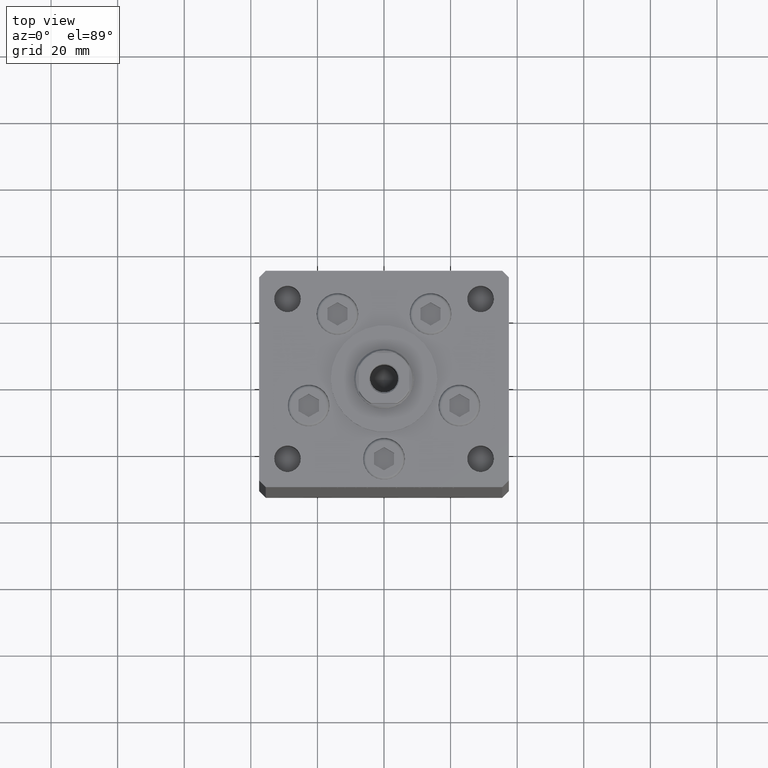
[diagram: clean part render]
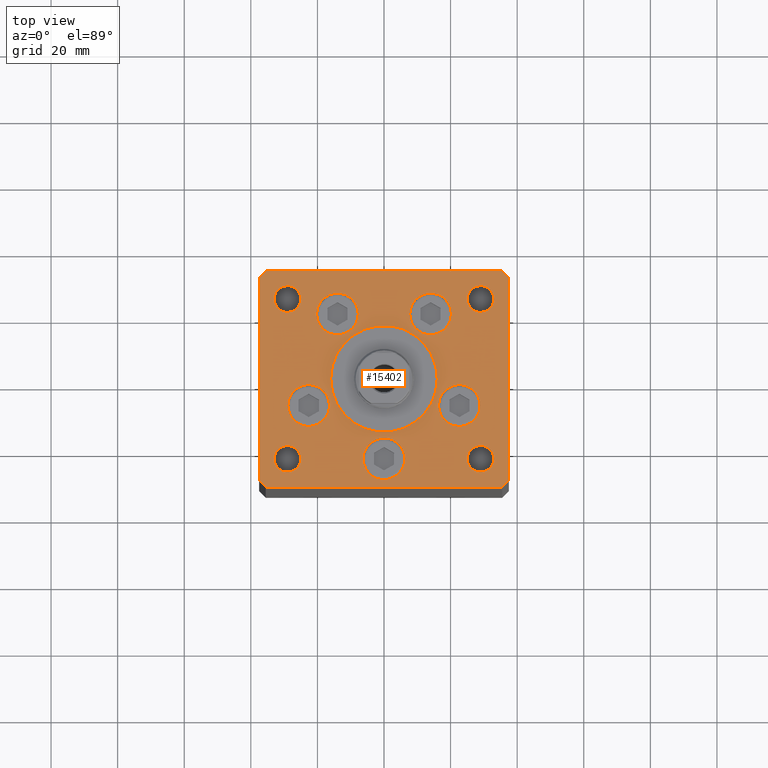
[diagram: same view with one face highlighted and labeled with its STEP entity id]
A machine part, top view. The second image highlights one B-rep face of the part: STEP entity #15402.
In plain terms, the highlighted planar face has unit normal (0, 0, 1).
Its self-contained STEP definition (entity closure, byte-faithful):
#266 = EDGE_CURVE ( 'NONE', #46180, #13747, #46873, .T. ) ;
#684 = DIRECTION ( 'NONE',  ( 0.7071067811865512365, -0.7071067811865439090, 0.000000000000000000 ) ) ;
#1178 = EDGE_LOOP ( 'NONE', ( #38456, #19712 ) ) ;
#1452 = AXIS2_PLACEMENT_3D ( 'NONE', #32591, #50248, #46303 ) ;
#1559 = ORIENTED_EDGE ( 'NONE', *, *, #3892, .T. ) ;
#1649 = EDGE_CURVE ( 'NONE', #3564, #48527, #29189, .T. ) ;
#2240 = CIRCLE ( 'NONE', #24136, 3.999999999999996447 ) ;
#2321 = CIRCLE ( 'NONE', #16646, 4.000000000000000000 ) ;
#2424 = EDGE_LOOP ( 'NONE', ( #32627, #14995 ) ) ;
#2438 = CIRCLE ( 'NONE', #6644, 16.00000000000000355 ) ;
#3105 = AXIS2_PLACEMENT_3D ( 'NONE', #10192, #50563, #37912 ) ;
#3564 = VERTEX_POINT ( 'NONE', #45364 ) ;
#3892 = EDGE_CURVE ( 'NONE', #16084, #27496, #32907, .T. ) ;
#4034 = EDGE_CURVE ( 'NONE', #8093, #24396, #41858, .T. ) ;
#4558 = LINE ( 'NONE', #28296, #16581 ) ;
#4947 = AXIS2_PLACEMENT_3D ( 'NONE', #21114, #37758, #29299 ) ;
#5232 = CARTESIAN_POINT ( 'NONE',  ( 28.87741699796953654, -8.000000000000000000, 0.000000000000000000 ) ) ;
#6028 = EDGE_CURVE ( 'NONE', #19261, #11202, #4558, .T. ) ;
#6080 = ORIENTED_EDGE ( 'NONE', *, *, #10222, .F. ) ;
#6254 = CIRCLE ( 'NONE', #19697, 6.250000000000000000 ) ;
#6269 = DIRECTION ( 'NONE',  ( 1.000000000000000000, 0.000000000000000000, 0.000000000000000000 ) ) ;
#6344 = EDGE_CURVE ( 'NONE', #48527, #3564, #30904, .T. ) ;
#6350 = VERTEX_POINT ( 'NONE', #42192 ) ;
#6488 = CIRCLE ( 'NONE', #1452, 4.000000000000000000 ) ;
#6644 = AXIS2_PLACEMENT_3D ( 'NONE', #26313, #14449, #6269 ) ;
#6688 = DIRECTION ( 'NONE',  ( 2.275047181608926165E-16, -1.000000000000000000, 0.000000000000000000 ) ) ;
#6813 = EDGE_CURVE ( 'NONE', #19186, #13334, #8150, .T. ) ;
#7239 = CARTESIAN_POINT ( 'NONE',  ( -16.37741699796953299, -8.000000000000000000, 0.000000000000000000 ) ) ;
#7797 = DIRECTION ( 'NONE',  ( 1.000000000000000000, 0.000000000000000000, 0.000000000000000000 ) ) ;
#8063 = CARTESIAN_POINT ( 'NONE',  ( -37.50000000000000000, -30.50000000000004263, 0.000000000000000000 ) ) ;
#8093 = VERTEX_POINT ( 'NONE', #36074 ) ;
#8150 = CIRCLE ( 'NONE', #17452, 3.999999999999996447 ) ;
#8175 = AXIS2_PLACEMENT_3D ( 'NONE', #52069, #43635, #44163 ) ;
#8250 = DIRECTION ( 'NONE',  ( 0.000000000000000000, 1.000000000000000000, 0.000000000000000000 ) ) ;
#9446 = FACE_BOUND ( 'NONE', #21359, .T. ) ;
#9621 = EDGE_CURVE ( 'NONE', #13747, #46180, #31876, .T. ) ;
#9701 = ORIENTED_EDGE ( 'NONE', *, *, #22376, .F. ) ;
#10039 = VECTOR ( 'NONE', #26150, 1000.000000000000000 ) ;
#10192 = CARTESIAN_POINT ( 'NONE',  ( 29.00000000000000355, -23.99999999999999645, 0.000000000000000000 ) ) ;
#10222 = EDGE_CURVE ( 'NONE', #27228, #35304, #51242, .T. ) ;
#11132 = DIRECTION ( 'NONE',  ( 1.000000000000000000, 0.000000000000000000, 0.000000000000000000 ) ) ;
#11150 = CARTESIAN_POINT ( 'NONE',  ( 29.00000000000000000, 24.00000000000000355, 0.000000000000000000 ) ) ;
#11152 = EDGE_CURVE ( 'NONE', #36867, #6350, #36158, .T. ) ;
#11202 = VERTEX_POINT ( 'NONE', #51175 ) ;
#11497 = CARTESIAN_POINT ( 'NONE',  ( -28.87741699796953654, -8.000000000000000000, 0.000000000000000000 ) ) ;
#11576 = DIRECTION ( 'NONE',  ( 1.000000000000000000, 0.000000000000000000, 0.000000000000000000 ) ) ;
#11884 = CIRCLE ( 'NONE', #35463, 6.250000000000000000 ) ;
#11963 = EDGE_CURVE ( 'NONE', #45616, #18477, #26656, .T. ) ;
#12314 = DIRECTION ( 'NONE',  ( 1.000000000000000000, 0.000000000000000000, 0.000000000000000000 ) ) ;
#12673 = EDGE_CURVE ( 'NONE', #11202, #17481, #37522, .T. ) ;
#12888 = FACE_BOUND ( 'NONE', #32511, .T. ) ;
#12900 = EDGE_LOOP ( 'NONE', ( #26578, #45601 ) ) ;
#13264 = DIRECTION ( 'NONE',  ( -1.000000000000000000, 0.000000000000000000, 0.000000000000000000 ) ) ;
#13289 = LINE ( 'NONE', #41516, #40756 ) ;
#13334 = VERTEX_POINT ( 'NONE', #39214 ) ;
#13412 = FACE_BOUND ( 'NONE', #27827, .T. ) ;
#13546 = CARTESIAN_POINT ( 'NONE',  ( 35.50000000000001421, -32.49999999999992184, 0.000000000000000000 ) ) ;
#13747 = VERTEX_POINT ( 'NONE', #49070 ) ;
#13754 = VERTEX_POINT ( 'NONE', #40883 ) ;
#14249 = CIRCLE ( 'NONE', #31084, 16.00000000000000355 ) ;
#14313 = DIRECTION ( 'NONE',  ( 1.000000000000000000, 0.000000000000000000, 0.000000000000000000 ) ) ;
#14449 = DIRECTION ( 'NONE',  ( 0.000000000000000000, 0.000000000000000000, 1.000000000000000000 ) ) ;
#14725 = CIRCLE ( 'NONE', #39190, 4.000000000000000000 ) ;
#14995 = ORIENTED_EDGE ( 'NONE', *, *, #11152, .F. ) ;
#15402 = ADVANCED_FACE ( 'NONE', ( #48778, #31899, #45336, #20782, #9446, #41378, #13412, #12888, #45863, #25532, #33202 ), #30017, .T. ) ;
#15531 = DIRECTION ( 'NONE',  ( 0.000000000000000000, 0.000000000000000000, 1.000000000000000000 ) ) ;
#15569 = EDGE_CURVE ( 'NONE', #18667, #22397, #2438, .T. ) ;
#15872 = AXIS2_PLACEMENT_3D ( 'NONE', #18262, #47287, #11132 ) ;
#16084 = VERTEX_POINT ( 'NONE', #17775 ) ;
#16143 = CARTESIAN_POINT ( 'NONE',  ( -22.62741699796953299, -8.000000000000000000, 0.000000000000000000 ) ) ;
#16288 = DIRECTION ( 'NONE',  ( 0.000000000000000000, 0.000000000000000000, 1.000000000000000000 ) ) ;
#16581 = VECTOR ( 'NONE', #8250, 1000.000000000000000 ) ;
#16646 = AXIS2_PLACEMENT_3D ( 'NONE', #45193, #32279, #13264 ) ;
#17020 = CARTESIAN_POINT ( 'NONE',  ( -33.00000000000000000, 24.00000000000000711, 0.000000000000000000 ) ) ;
#17452 = AXIS2_PLACEMENT_3D ( 'NONE', #30669, #50460, #14313 ) ;
#17481 = VERTEX_POINT ( 'NONE', #33637 ) ;
#17557 = CARTESIAN_POINT ( 'NONE',  ( 7.741068579633241242, 19.50000000000000000, 0.000000000000000000 ) ) ;
#17775 = CARTESIAN_POINT ( 'NONE',  ( -35.50000000000001421, -32.50000000000000711, 0.000000000000000000 ) ) ;
#17828 = ORIENTED_EDGE ( 'NONE', *, *, #6344, .F. ) ;
#17926 = EDGE_CURVE ( 'NONE', #22397, #18667, #14249, .T. ) ;
#18043 = CARTESIAN_POINT ( 'NONE',  ( 33.00000000000000000, 24.00000000000000355, 0.000000000000000000 ) ) ;
#18262 = CARTESIAN_POINT ( 'NONE',  ( -22.62741699796953299, -8.000000000000000000, 0.000000000000000000 ) ) ;
#18303 = VERTEX_POINT ( 'NONE', #17020 ) ;
#18477 = VERTEX_POINT ( 'NONE', #27537 ) ;
#18667 = VERTEX_POINT ( 'NONE', #30410 ) ;
#18740 = DIRECTION ( 'NONE',  ( -0.7071067811865524577, -0.7071067811865426878, 0.000000000000000000 ) ) ;
#19186 = VERTEX_POINT ( 'NONE', #43390 ) ;
#19261 = VERTEX_POINT ( 'NONE', #48913 ) ;
#19697 = AXIS2_PLACEMENT_3D ( 'NONE', #38134, #25456, #50780 ) ;
#19712 = ORIENTED_EDGE ( 'NONE', *, *, #15569, .F. ) ;
#19804 = CARTESIAN_POINT ( 'NONE',  ( 22.62741699796953299, -8.000000000000000000, 0.000000000000000000 ) ) ;
#20544 = VERTEX_POINT ( 'NONE', #22411 ) ;
#20782 = FACE_BOUND ( 'NONE', #12900, .T. ) ;
#21114 = CARTESIAN_POINT ( 'NONE',  ( 13.99106857963324124, 19.50000000000000000, 0.000000000000000000 ) ) ;
#21300 = VERTEX_POINT ( 'NONE', #37511 ) ;
#21359 = EDGE_LOOP ( 'NONE', ( #25988, #9701 ) ) ;
#21883 = EDGE_CURVE ( 'NONE', #18477, #20544, #39674, .T. ) ;
#22376 = EDGE_CURVE ( 'NONE', #35806, #21300, #11884, .T. ) ;
#22397 = VERTEX_POINT ( 'NONE', #34255 ) ;
#22411 = CARTESIAN_POINT ( 'NONE',  ( -37.50000000000000000, -30.50000000000004263, 0.000000000000000000 ) ) ;
#22599 = AXIS2_PLACEMENT_3D ( 'NONE', #19804, #43565, #44091 ) ;
#22894 = DIRECTION ( 'NONE',  ( 0.000000000000000000, 0.000000000000000000, 1.000000000000000000 ) ) ;
#23014 = DIRECTION ( 'NONE',  ( 0.000000000000000000, 0.000000000000000000, 1.000000000000000000 ) ) ;
#23571 = CARTESIAN_POINT ( 'NONE',  ( 0.000000000000000000, -24.00000000000001066, 0.000000000000000000 ) ) ;
#23574 = CARTESIAN_POINT ( 'NONE',  ( -29.00000000000000000, 24.00000000000000711, 0.000000000000000000 ) ) ;
#23721 = ORIENTED_EDGE ( 'NONE', *, *, #46562, .T. ) ;
#24136 = AXIS2_PLACEMENT_3D ( 'NONE', #43682, #47908, #7797 ) ;
#24292 = CARTESIAN_POINT ( 'NONE',  ( -7.741068579633241242, 19.50000000000000000, 0.000000000000000000 ) ) ;
#24396 = VERTEX_POINT ( 'NONE', #29348 ) ;
#24933 = AXIS2_PLACEMENT_3D ( 'NONE', #32383, #16288, #40303 ) ;
#25097 = ORIENTED_EDGE ( 'NONE', *, *, #30108, .T. ) ;
#25307 = ORIENTED_EDGE ( 'NONE', *, *, #33246, .F. ) ;
#25456 = DIRECTION ( 'NONE',  ( 0.000000000000000000, 0.000000000000000000, 1.000000000000000000 ) ) ;
#25532 = FACE_OUTER_BOUND ( 'NONE', #28470, .T. ) ;
#25988 = ORIENTED_EDGE ( 'NONE', *, *, #42629, .F. ) ;
#26089 = DIRECTION ( 'NONE',  ( 0.000000000000000000, 0.000000000000000000, 1.000000000000000000 ) ) ;
#26107 = AXIS2_PLACEMENT_3D ( 'NONE', #49291, #28972, #37429 ) ;
#26150 = DIRECTION ( 'NONE',  ( -0.7071067811865524577, 0.7071067811865426878, 0.000000000000000000 ) ) ;
#26313 = CARTESIAN_POINT ( 'NONE',  ( 0.000000000000000000, -6.938893903907228378E-15, 0.000000000000000000 ) ) ;
#26337 = DIRECTION ( 'NONE',  ( 1.000000000000000000, 0.000000000000000000, 0.000000000000000000 ) ) ;
#26578 = ORIENTED_EDGE ( 'NONE', *, *, #266, .F. ) ;
#26656 = LINE ( 'NONE', #47761, #50456 ) ;
#26663 = CARTESIAN_POINT ( 'NONE',  ( 37.50000000000000711, 30.50000000000001421, 0.000000000000000000 ) ) ;
#26815 = CIRCLE ( 'NONE', #37798, 4.000000000000000000 ) ;
#26911 = LINE ( 'NONE', #30873, #31629 ) ;
#27228 = VERTEX_POINT ( 'NONE', #7239 ) ;
#27496 = VERTEX_POINT ( 'NONE', #13546 ) ;
#27534 = CIRCLE ( 'NONE', #46115, 6.250000000000000000 ) ;
#27537 = CARTESIAN_POINT ( 'NONE',  ( -37.50000000000001421, 30.50000000000000000, 0.000000000000000000 ) ) ;
#27655 = CARTESIAN_POINT ( 'NONE',  ( -6.250000000000000000, -24.00000000000001066, 0.000000000000000000 ) ) ;
#27827 = EDGE_LOOP ( 'NONE', ( #28987, #23721 ) ) ;
#28129 = ORIENTED_EDGE ( 'NONE', *, *, #41482, .F. ) ;
#28296 = CARTESIAN_POINT ( 'NONE',  ( 37.50000000000000711, -30.49999999999992895, 0.000000000000000000 ) ) ;
#28470 = EDGE_LOOP ( 'NONE', ( #29372, #1559, #43384, #38408, #33207, #25097, #36478, #36548 ) ) ;
#28972 = DIRECTION ( 'NONE',  ( -0.000000000000000000, 0.000000000000000000, 1.000000000000000000 ) ) ;
#28987 = ORIENTED_EDGE ( 'NONE', *, *, #43589, .T. ) ;
#29189 = CIRCLE ( 'NONE', #46049, 6.250000000000000000 ) ;
#29299 = DIRECTION ( 'NONE',  ( 1.000000000000000000, 0.000000000000000000, 0.000000000000000000 ) ) ;
#29348 = CARTESIAN_POINT ( 'NONE',  ( 33.00000000000000000, -23.99999999999999645, 0.000000000000000000 ) ) ;
#29372 = ORIENTED_EDGE ( 'NONE', *, *, #47204, .T. ) ;
#30017 = PLANE ( 'NONE',  #26107 ) ;
#30042 = CARTESIAN_POINT ( 'NONE',  ( 0.000000000000000000, -24.00000000000001066, 0.000000000000000000 ) ) ;
#30108 = EDGE_CURVE ( 'NONE', #17481, #45616, #13289, .T. ) ;
#30410 = CARTESIAN_POINT ( 'NONE',  ( 16.00000000000000355, -4.979459025271462852E-15, 0.000000000000000000 ) ) ;
#30669 = CARTESIAN_POINT ( 'NONE',  ( -29.00000000000000000, -23.99999999999999645, 0.000000000000000000 ) ) ;
#30873 = CARTESIAN_POINT ( 'NONE',  ( 35.50000000000001421, -32.49999999999992184, 0.000000000000000000 ) ) ;
#30904 = CIRCLE ( 'NONE', #47780, 6.250000000000000000 ) ;
#30937 = CIRCLE ( 'NONE', #8175, 4.000000000000000000 ) ;
#31084 = AXIS2_PLACEMENT_3D ( 'NONE', #51676, #15531, #11576 ) ;
#31215 = CARTESIAN_POINT ( 'NONE',  ( -37.50000000000001421, 30.50000000000000000, 0.000000000000000000 ) ) ;
#31583 = CARTESIAN_POINT ( 'NONE',  ( -13.99106857963324124, 19.50000000000000000, 0.000000000000000000 ) ) ;
#31629 = VECTOR ( 'NONE', #50412, 1000.000000000000000 ) ;
#31876 = CIRCLE ( 'NONE', #22599, 6.250000000000001776 ) ;
#31899 = FACE_BOUND ( 'NONE', #43547, .T. ) ;
#31982 = CARTESIAN_POINT ( 'NONE',  ( 24.99999999999999645, 24.00000000000000355, 0.000000000000000000 ) ) ;
#32010 = EDGE_CURVE ( 'NONE', #6350, #36867, #6254, .T. ) ;
#32176 = EDGE_LOOP ( 'NONE', ( #51586, #40302 ) ) ;
#32279 = DIRECTION ( 'NONE',  ( -0.000000000000000000, -0.000000000000000000, -1.000000000000000000 ) ) ;
#32383 = CARTESIAN_POINT ( 'NONE',  ( 22.62741699796953299, -8.000000000000000000, 0.000000000000000000 ) ) ;
#32384 = CARTESIAN_POINT ( 'NONE',  ( -35.50000000000001421, -32.50000000000000711, 0.000000000000000000 ) ) ;
#32511 = EDGE_LOOP ( 'NONE', ( #40937, #38261 ) ) ;
#32591 = CARTESIAN_POINT ( 'NONE',  ( 29.00000000000000355, -23.99999999999999645, 0.000000000000000000 ) ) ;
#32598 = ORIENTED_EDGE ( 'NONE', *, *, #6813, .F. ) ;
#32627 = ORIENTED_EDGE ( 'NONE', *, *, #32010, .F. ) ;
#32907 = LINE ( 'NONE', #32384, #37683 ) ;
#33202 = FACE_BOUND ( 'NONE', #32176, .T. ) ;
#33207 = ORIENTED_EDGE ( 'NONE', *, *, #12673, .T. ) ;
#33246 = EDGE_CURVE ( 'NONE', #35304, #27228, #39861, .T. ) ;
#33637 = CARTESIAN_POINT ( 'NONE',  ( 35.50000000000000000, 32.49999999999999289, 0.000000000000000000 ) ) ;
#34255 = CARTESIAN_POINT ( 'NONE',  ( -16.00000000000000355, -6.938893903907228378E-15, 0.000000000000000000 ) ) ;
#34304 = VERTEX_POINT ( 'NONE', #18043 ) ;
#34649 = DIRECTION ( 'NONE',  ( 1.000000000000000000, 0.000000000000000000, 0.000000000000000000 ) ) ;
#34679 = DIRECTION ( 'NONE',  ( -1.000000000000000000, 0.000000000000000000, 0.000000000000000000 ) ) ;
#34938 = DIRECTION ( 'NONE',  ( -0.000000000000000000, -0.000000000000000000, -1.000000000000000000 ) ) ;
#35304 = VERTEX_POINT ( 'NONE', #11497 ) ;
#35459 = DIRECTION ( 'NONE',  ( 0.000000000000000000, 0.000000000000000000, 1.000000000000000000 ) ) ;
#35463 = AXIS2_PLACEMENT_3D ( 'NONE', #30042, #22894, #26337 ) ;
#35806 = VERTEX_POINT ( 'NONE', #27655 ) ;
#35932 = EDGE_LOOP ( 'NONE', ( #32598, #28129 ) ) ;
#36074 = CARTESIAN_POINT ( 'NONE',  ( 25.00000000000000355, -23.99999999999999645, 0.000000000000000000 ) ) ;
#36104 = VECTOR ( 'NONE', #684, 1000.000000000000000 ) ;
#36158 = CIRCLE ( 'NONE', #4947, 6.250000000000000000 ) ;
#36478 = ORIENTED_EDGE ( 'NONE', *, *, #11963, .T. ) ;
#36548 = ORIENTED_EDGE ( 'NONE', *, *, #21883, .T. ) ;
#36722 = DIRECTION ( 'NONE',  ( 0.000000000000000000, 0.000000000000000000, 1.000000000000000000 ) ) ;
#36867 = VERTEX_POINT ( 'NONE', #17557 ) ;
#37183 = EDGE_LOOP ( 'NONE', ( #6080, #25307 ) ) ;
#37429 = DIRECTION ( 'NONE',  ( 1.000000000000000000, 0.000000000000000000, 0.000000000000000000 ) ) ;
#37511 = CARTESIAN_POINT ( 'NONE',  ( 6.250000000000000000, -24.00000000000001066, 0.000000000000000000 ) ) ;
#37522 = LINE ( 'NONE', #26663, #10039 ) ;
#37683 = VECTOR ( 'NONE', #49000, 1000.000000000000000 ) ;
#37758 = DIRECTION ( 'NONE',  ( 0.000000000000000000, 0.000000000000000000, 1.000000000000000000 ) ) ;
#37798 = AXIS2_PLACEMENT_3D ( 'NONE', #23574, #34938, #34679 ) ;
#37912 = DIRECTION ( 'NONE',  ( -1.000000000000000000, 0.000000000000000000, 0.000000000000000000 ) ) ;
#38134 = CARTESIAN_POINT ( 'NONE',  ( 13.99106857963324124, 19.50000000000000000, 0.000000000000000000 ) ) ;
#38261 = ORIENTED_EDGE ( 'NONE', *, *, #39303, .F. ) ;
#38408 = ORIENTED_EDGE ( 'NONE', *, *, #6028, .T. ) ;
#38456 = ORIENTED_EDGE ( 'NONE', *, *, #17926, .F. ) ;
#39032 = AXIS2_PLACEMENT_3D ( 'NONE', #16143, #36722, #41190 ) ;
#39190 = AXIS2_PLACEMENT_3D ( 'NONE', #11150, #23014, #34649 ) ;
#39214 = CARTESIAN_POINT ( 'NONE',  ( -32.99999999999999289, -23.99999999999999645, 0.000000000000000000 ) ) ;
#39303 = EDGE_CURVE ( 'NONE', #39462, #34304, #14725, .T. ) ;
#39462 = VERTEX_POINT ( 'NONE', #31982 ) ;
#39645 = EDGE_CURVE ( 'NONE', #27496, #19261, #26911, .T. ) ;
#39674 = LINE ( 'NONE', #31215, #51419 ) ;
#39861 = CIRCLE ( 'NONE', #39032, 6.250000000000001776 ) ;
#40302 = ORIENTED_EDGE ( 'NONE', *, *, #4034, .T. ) ;
#40303 = DIRECTION ( 'NONE',  ( 1.000000000000000000, 0.000000000000000000, 0.000000000000000000 ) ) ;
#40756 = VECTOR ( 'NONE', #49433, 1000.000000000000000 ) ;
#40883 = CARTESIAN_POINT ( 'NONE',  ( -25.00000000000000000, 24.00000000000000711, 0.000000000000000000 ) ) ;
#40937 = ORIENTED_EDGE ( 'NONE', *, *, #43435, .F. ) ;
#41190 = DIRECTION ( 'NONE',  ( 1.000000000000000000, 0.000000000000000000, 0.000000000000000000 ) ) ;
#41378 = FACE_BOUND ( 'NONE', #37183, .T. ) ;
#41381 = ORIENTED_EDGE ( 'NONE', *, *, #1649, .F. ) ;
#41482 = EDGE_CURVE ( 'NONE', #13334, #19186, #2240, .T. ) ;
#41516 = CARTESIAN_POINT ( 'NONE',  ( 35.50000000000000000, 32.49999999999999289, 0.000000000000000000 ) ) ;
#41765 = CARTESIAN_POINT ( 'NONE',  ( -35.50000000000000711, 32.49999999999997868, 0.000000000000000000 ) ) ;
#41858 = CIRCLE ( 'NONE', #3105, 4.000000000000000000 ) ;
#42192 = CARTESIAN_POINT ( 'NONE',  ( 20.24106857963324302, 19.50000000000000000, 0.000000000000000000 ) ) ;
#42629 = EDGE_CURVE ( 'NONE', #21300, #35806, #27534, .T. ) ;
#43346 = EDGE_CURVE ( 'NONE', #24396, #8093, #6488, .T. ) ;
#43384 = ORIENTED_EDGE ( 'NONE', *, *, #39645, .T. ) ;
#43390 = CARTESIAN_POINT ( 'NONE',  ( -25.00000000000000355, -23.99999999999999645, 0.000000000000000000 ) ) ;
#43435 = EDGE_CURVE ( 'NONE', #34304, #39462, #30937, .T. ) ;
#43547 = EDGE_LOOP ( 'NONE', ( #17828, #41381 ) ) ;
#43565 = DIRECTION ( 'NONE',  ( 0.000000000000000000, 0.000000000000000000, 1.000000000000000000 ) ) ;
#43589 = EDGE_CURVE ( 'NONE', #13754, #18303, #2321, .T. ) ;
#43635 = DIRECTION ( 'NONE',  ( 0.000000000000000000, 0.000000000000000000, 1.000000000000000000 ) ) ;
#43682 = CARTESIAN_POINT ( 'NONE',  ( -29.00000000000000000, -23.99999999999999645, 0.000000000000000000 ) ) ;
#44091 = DIRECTION ( 'NONE',  ( 1.000000000000000000, 0.000000000000000000, 0.000000000000000000 ) ) ;
#44163 = DIRECTION ( 'NONE',  ( 1.000000000000000000, 0.000000000000000000, 0.000000000000000000 ) ) ;
#44221 = LINE ( 'NONE', #8063, #36104 ) ;
#45193 = CARTESIAN_POINT ( 'NONE',  ( -29.00000000000000000, 24.00000000000000711, 0.000000000000000000 ) ) ;
#45336 = FACE_BOUND ( 'NONE', #2424, .T. ) ;
#45364 = CARTESIAN_POINT ( 'NONE',  ( -20.24106857963324302, 19.50000000000000000, 0.000000000000000000 ) ) ;
#45601 = ORIENTED_EDGE ( 'NONE', *, *, #9621, .F. ) ;
#45616 = VERTEX_POINT ( 'NONE', #41765 ) ;
#45863 = FACE_BOUND ( 'NONE', #35932, .T. ) ;
#46049 = AXIS2_PLACEMENT_3D ( 'NONE', #31583, #52163, #12314 ) ;
#46115 = AXIS2_PLACEMENT_3D ( 'NONE', #23571, #35459, #48114 ) ;
#46160 = DIRECTION ( 'NONE',  ( 1.000000000000000000, 0.000000000000000000, 0.000000000000000000 ) ) ;
#46180 = VERTEX_POINT ( 'NONE', #5232 ) ;
#46303 = DIRECTION ( 'NONE',  ( -1.000000000000000000, 0.000000000000000000, 0.000000000000000000 ) ) ;
#46562 = EDGE_CURVE ( 'NONE', #18303, #13754, #26815, .T. ) ;
#46873 = CIRCLE ( 'NONE', #24933, 6.250000000000001776 ) ;
#47204 = EDGE_CURVE ( 'NONE', #20544, #16084, #44221, .T. ) ;
#47287 = DIRECTION ( 'NONE',  ( 0.000000000000000000, 0.000000000000000000, 1.000000000000000000 ) ) ;
#47761 = CARTESIAN_POINT ( 'NONE',  ( -35.50000000000000711, 32.49999999999997868, 0.000000000000000000 ) ) ;
#47780 = AXIS2_PLACEMENT_3D ( 'NONE', #49848, #26089, #46160 ) ;
#47908 = DIRECTION ( 'NONE',  ( 0.000000000000000000, 0.000000000000000000, 1.000000000000000000 ) ) ;
#48114 = DIRECTION ( 'NONE',  ( 1.000000000000000000, 0.000000000000000000, 0.000000000000000000 ) ) ;
#48527 = VERTEX_POINT ( 'NONE', #24292 ) ;
#48778 = FACE_BOUND ( 'NONE', #1178, .T. ) ;
#48913 = CARTESIAN_POINT ( 'NONE',  ( 37.50000000000000711, -30.49999999999992895, 0.000000000000000000 ) ) ;
#49000 = DIRECTION ( 'NONE',  ( 1.000000000000000000, 1.172770800660376149E-15, 0.000000000000000000 ) ) ;
#49070 = CARTESIAN_POINT ( 'NONE',  ( 16.37741699796953299, -8.000000000000000000, 0.000000000000000000 ) ) ;
#49291 = CARTESIAN_POINT ( 'NONE',  ( 0.000000000000000000, 0.000000000000000000, 0.000000000000000000 ) ) ;
#49433 = DIRECTION ( 'NONE',  ( -1.000000000000000000, -1.954618001100627573E-16, 0.000000000000000000 ) ) ;
#49848 = CARTESIAN_POINT ( 'NONE',  ( -13.99106857963324124, 19.50000000000000000, 0.000000000000000000 ) ) ;
#50248 = DIRECTION ( 'NONE',  ( -0.000000000000000000, -0.000000000000000000, -1.000000000000000000 ) ) ;
#50412 = DIRECTION ( 'NONE',  ( 0.7071067811865463515, 0.7071067811865487940, 0.000000000000000000 ) ) ;
#50456 = VECTOR ( 'NONE', #18740, 1000.000000000000000 ) ;
#50460 = DIRECTION ( 'NONE',  ( 0.000000000000000000, 0.000000000000000000, 1.000000000000000000 ) ) ;
#50563 = DIRECTION ( 'NONE',  ( -0.000000000000000000, -0.000000000000000000, -1.000000000000000000 ) ) ;
#50780 = DIRECTION ( 'NONE',  ( 1.000000000000000000, 0.000000000000000000, 0.000000000000000000 ) ) ;
#51175 = CARTESIAN_POINT ( 'NONE',  ( 37.50000000000000711, 30.50000000000001421, 0.000000000000000000 ) ) ;
#51242 = CIRCLE ( 'NONE', #15872, 6.250000000000001776 ) ;
#51419 = VECTOR ( 'NONE', #6688, 1000.000000000000000 ) ;
#51586 = ORIENTED_EDGE ( 'NONE', *, *, #43346, .T. ) ;
#51676 = CARTESIAN_POINT ( 'NONE',  ( 0.000000000000000000, -6.938893903907228378E-15, 0.000000000000000000 ) ) ;
#52069 = CARTESIAN_POINT ( 'NONE',  ( 29.00000000000000000, 24.00000000000000355, 0.000000000000000000 ) ) ;
#52163 = DIRECTION ( 'NONE',  ( 0.000000000000000000, 0.000000000000000000, 1.000000000000000000 ) ) ;